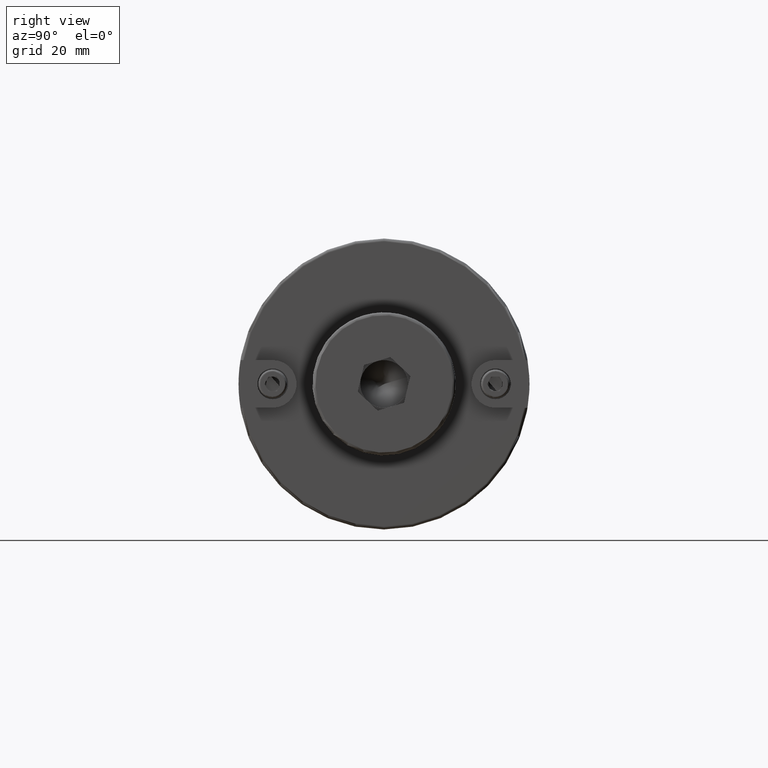
[diagram: clean part render]
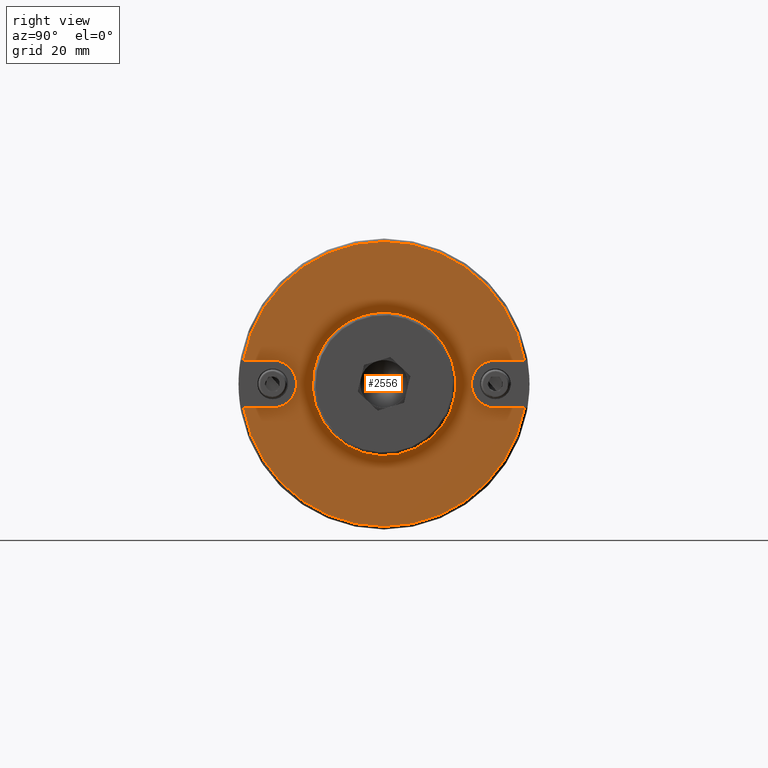
[diagram: same view with one face highlighted and labeled with its STEP entity id]
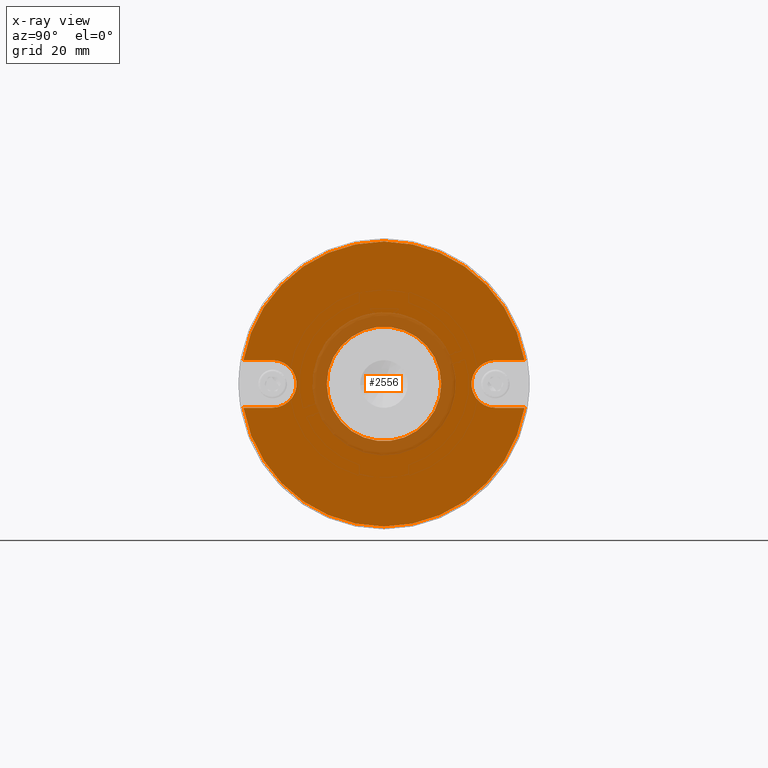
[diagram: x-ray of the same camera — body ghosted, the highlighted face saturated]
A machine part, right view. The second image highlights one B-rep face of the part: STEP entity #2556.
The next image is the same camera in x-ray: the body ghosted, the highlighted face saturated — about 12% of this face is hidden behind the body in this view.
In plain terms, the highlighted planar face has unit normal (1, 0, 0).
Its self-contained STEP definition (entity closure, byte-faithful):
#182=FACE_BOUND('',#527,.T.);
#207=CIRCLE('',#2798,7.935);
#213=CIRCLE('',#2807,47.425);
#214=CIRCLE('',#2809,47.425);
#218=CIRCLE('',#2819,7.935);
#236=CIRCLE('',#2846,19.05);
#370=FACE_OUTER_BOUND('',#526,.T.);
#526=EDGE_LOOP('',(#1817,#1818,#1819,#1820,#1821,#1822,#1823,#1824));
#527=EDGE_LOOP('',(#1825));
#675=LINE('',#3943,#838);
#684=LINE('',#3984,#847);
#690=LINE('',#4037,#853);
#695=LINE('',#4048,#858);
#838=VECTOR('',#3118,10.);
#847=VECTOR('',#3149,10.);
#853=VECTOR('',#3185,10.);
#858=VECTOR('',#3196,10.);
#1041=VERTEX_POINT('',#3930);
#1043=VERTEX_POINT('',#3942);
#1052=VERTEX_POINT('',#3967);
#1054=VERTEX_POINT('',#3972);
#1061=VERTEX_POINT('',#4001);
#1062=VERTEX_POINT('',#4014);
#1066=VERTEX_POINT('',#4036);
#1069=VERTEX_POINT('',#4046);
#1102=VERTEX_POINT('',#4282);
#1299=EDGE_CURVE('',#1043,#1041,#675,.T.);
#1311=EDGE_CURVE('',#1052,#1043,#207,.T.);
#1315=EDGE_CURVE('',#1054,#1052,#684,.T.);
#1324=EDGE_CURVE('',#1054,#1061,#213,.T.);
#1327=EDGE_CURVE('',#1062,#1041,#214,.T.);
#1332=EDGE_CURVE('',#1066,#1061,#690,.T.);
#1338=EDGE_CURVE('',#1062,#1069,#695,.T.);
#1339=EDGE_CURVE('',#1069,#1066,#218,.T.);
#1380=EDGE_CURVE('',#1102,#1102,#236,.T.);
#1817=ORIENTED_EDGE('',*,*,#1299,.T.);
#1818=ORIENTED_EDGE('',*,*,#1327,.F.);
#1819=ORIENTED_EDGE('',*,*,#1338,.T.);
#1820=ORIENTED_EDGE('',*,*,#1339,.T.);
#1821=ORIENTED_EDGE('',*,*,#1332,.T.);
#1822=ORIENTED_EDGE('',*,*,#1324,.F.);
#1823=ORIENTED_EDGE('',*,*,#1315,.T.);
#1824=ORIENTED_EDGE('',*,*,#1311,.T.);
#1825=ORIENTED_EDGE('',*,*,#1380,.F.);
#2471=PLANE('',#2845);
#2556=ADVANCED_FACE('',(#370,#182),#2471,.T.);
#2798=AXIS2_PLACEMENT_3D('',#3968,#3143,#3144);
#2807=AXIS2_PLACEMENT_3D('',#4002,#3167,#3168);
#2809=AXIS2_PLACEMENT_3D('',#4025,#3171,#3172);
#2819=AXIS2_PLACEMENT_3D('',#4050,#3199,#3200);
#2845=AXIS2_PLACEMENT_3D('',#4281,#3260,#3261);
#2846=AXIS2_PLACEMENT_3D('',#4283,#3262,#3263);
#3118=DIRECTION('',(0.,-1.,1.90305989088286E-16));
#3143=DIRECTION('center_axis',(-1.,0.,0.));
#3144=DIRECTION('ref_axis',(0.,-1.22464679914735E-16,-1.));
#3149=DIRECTION('',(0.,1.,-5.46233707411847E-17));
#3167=DIRECTION('center_axis',(-1.,0.,0.));
#3168=DIRECTION('ref_axis',(0.,-1.,1.83697019872103E-16));
#3171=DIRECTION('center_axis',(-1.,0.,0.));
#3172=DIRECTION('ref_axis',(0.,-1.,1.83697019872103E-16));
#3185=DIRECTION('',(0.,1.,-6.78413091735506E-17));
#3196=DIRECTION('',(0.,-1.,-6.78413091735506E-17));
#3199=DIRECTION('center_axis',(-1.,0.,0.));
#3200=DIRECTION('ref_axis',(0.,0.,1.));
#3260=DIRECTION('center_axis',(1.,0.,0.));
#3261=DIRECTION('ref_axis',(0.,0.,-1.));
#3262=DIRECTION('center_axis',(1.,0.,0.));
#3263=DIRECTION('ref_axis',(0.,0.,-1.));
#3930=CARTESIAN_POINT('',(101.6,-46.7564583774263,-7.93499999999999));
#3942=CARTESIAN_POINT('',(101.6,-37.06,-7.935));
#3943=CARTESIAN_POINT('',(101.6,-9.005,-7.935));
#3967=CARTESIAN_POINT('',(101.6,-37.06,7.93500000000001));
#3968=CARTESIAN_POINT('Origin',(101.6,-37.06,4.53854103764009E-15));
#3972=CARTESIAN_POINT('',(101.6,-46.7564583774263,7.93500000000001));
#3984=CARTESIAN_POINT('',(101.6,-17.1875,7.935));
#4001=CARTESIAN_POINT('',(101.6,46.7564583774263,7.935));
#4002=CARTESIAN_POINT('Origin',(101.6,0.,0.));
#4014=CARTESIAN_POINT('',(101.6,46.7564583774263,-7.935));
#4025=CARTESIAN_POINT('Origin',(101.6,0.,0.));
#4036=CARTESIAN_POINT('',(101.6,37.06,7.935));
#4037=CARTESIAN_POINT('',(101.6,28.055,7.935));
#4046=CARTESIAN_POINT('',(101.6,37.06,-7.935));
#4048=CARTESIAN_POINT('',(101.6,36.2375,-7.935));
#4050=CARTESIAN_POINT('Origin',(101.6,37.06,0.));
#4281=CARTESIAN_POINT('Origin',(101.6,19.05,0.));
#4282=CARTESIAN_POINT('',(101.6,-19.05,-2.33295215237571E-15));
#4283=CARTESIAN_POINT('Origin',(101.6,0.,0.));